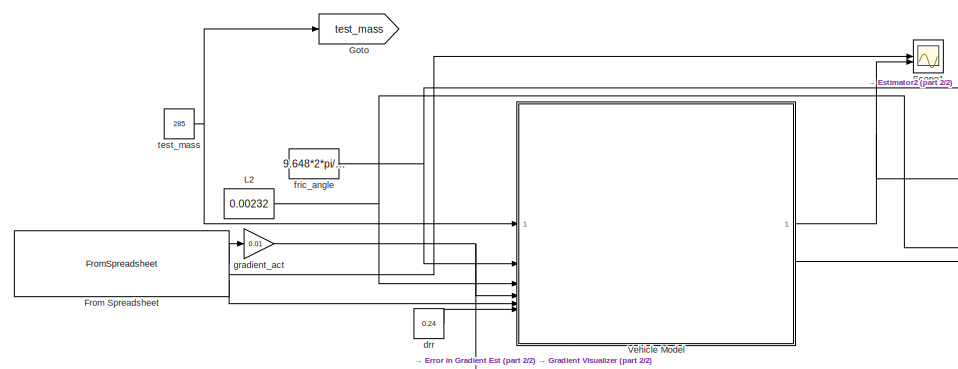
[diagram: root canvas - part 1/2, left side, full height]
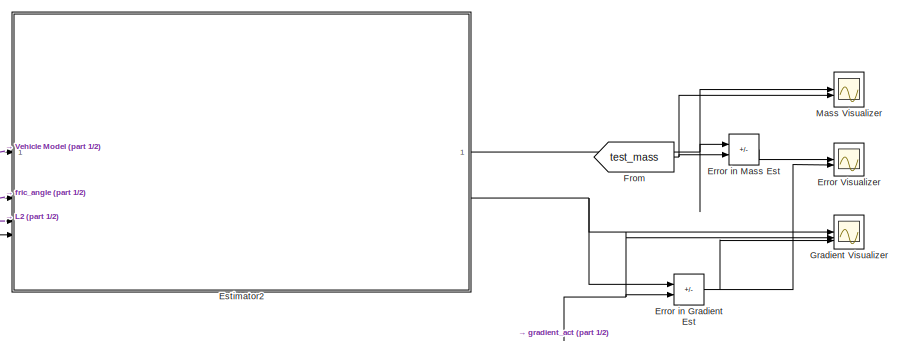
[diagram: root canvas - part 2/2, right side, full height]
MODEL slx_0ac72a007398
KIND model
CONFIG AbsTol = auto
CONFIG EnableMultiTasking = off
CONFIG FixedStep = 0.001
CONFIG MaxStep = auto
CONFIG MinStep = auto
CONFIG RelTol = 1e-3
CONFIG SampleTimeConstraint = Unconstrained
CONFIG SolverName = ode4
CONFIG StartTime = 0.0
CONFIG StopTime = 300
BLOCK [Scope] Error Visualizer
  Floating = off
  NumInputPorts = 2
  ScopeSpecificationString = Simulink.scopes.TimeScopeBlockCfg('CurrentConfiguration', extmgr.ConfigurationSet(extmgr.Configuration('Core','General UI',true),extmgr.Configuration('Core','Source UI',true),extmgr.Configuration('Sources','WiredSimulink',true,'DataLoggingVariableName','ScopeData1'),extmgr.Configuration('Visuals','Time Domain',true,'SerializedDisplays',{struct('MinYLimReal','-71715938.24475','MaxYLimReal','2352497...<+2314ch>
BLOCK [Sum] Error in Gradient Est
  IconShape = rectangular
  Inputs = +-
BLOCK [Sum] Error in Mass Est
  IconShape = rectangular
  Inputs = +-
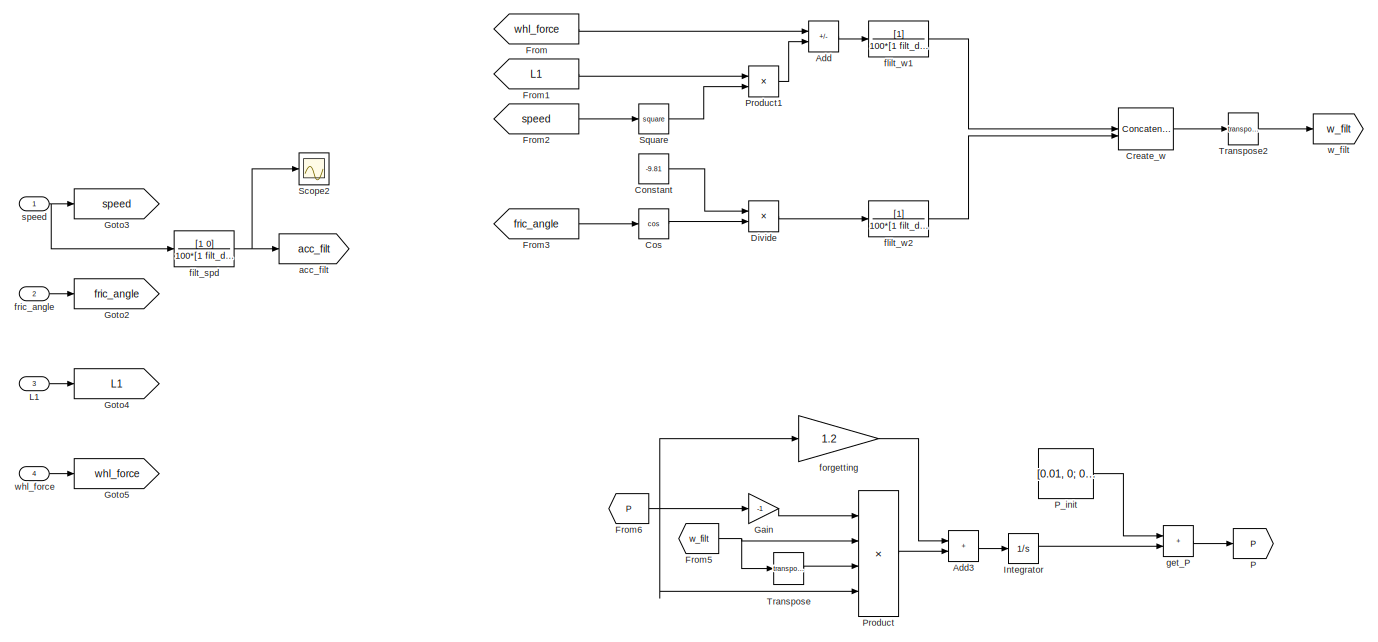
[diagram: Estimator2 - part 1/2, left side, full height]
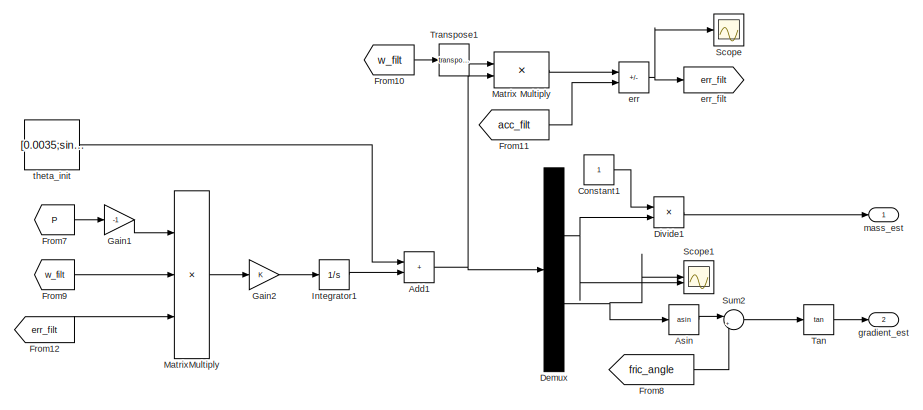
[diagram: Estimator2 - part 2/2, middle right region]
BLOCK [SubSystem] Estimator2
BLOCK [Sum] Estimator2/Add
  IconShape = rectangular
  Inputs = +-
BLOCK [Sum] Estimator2/Add1
  IconShape = rectangular
BLOCK [Sum] Estimator2/Add3
  IconShape = rectangular
BLOCK [Trigonometry] Estimator2/Asin
  Operator = asin
BLOCK [Constant] Estimator2/Constant
  Value = -9.81
BLOCK [Constant] Estimator2/Constant1
BLOCK [Trigonometry] Estimator2/Cos
  Operator = cos
BLOCK [Concatenate] Estimator2/Create_w
  ConcatenateDimension = 2
  Mode = Multidimensional array
BLOCK [Demux] Estimator2/Demux
  Outputs = 2
BLOCK [Product] Estimator2/Divide
  Inputs = */
BLOCK [Product] Estimator2/Divide1
  Inputs = */
BLOCK [From] Estimator2/From
  GotoTag = whl_force
BLOCK [From] Estimator2/From1
  GotoTag = L1
BLOCK [From] Estimator2/From10
  GotoTag = w_filt
BLOCK [From] Estimator2/From11
  GotoTag = acc_filt
BLOCK [From] Estimator2/From12
  GotoTag = err_filt
BLOCK [From] Estimator2/From2
  GotoTag = speed
BLOCK [From] Estimator2/From3
  GotoTag = fric_angle
BLOCK [From] Estimator2/From5
  GotoTag = w_filt
BLOCK [From] Estimator2/From6
  GotoTag = P
BLOCK [From] Estimator2/From7
  GotoTag = P
BLOCK [From] Estimator2/From8
  GotoTag = fric_angle
BLOCK [From] Estimator2/From9
  GotoTag = w_filt
BLOCK [Gain] Estimator2/Gain
  Gain = -1
BLOCK [Gain] Estimator2/Gain1
  Gain = -1
BLOCK [Gain] Estimator2/Gain2
BLOCK [Goto] Estimator2/Goto2
  GotoTag = fric_angle
BLOCK [Goto] Estimator2/Goto3
  GotoTag = speed
BLOCK [Goto] Estimator2/Goto4
  GotoTag = L1
BLOCK [Goto] Estimator2/Goto5
  GotoTag = whl_force
BLOCK [Integrator] Estimator2/Integrator
BLOCK [Integrator] Estimator2/Integrator1
BLOCK [Inport] Estimator2/L1
  Port = 3
BLOCK [Product] Estimator2/Matrix Multiply
  Multiplication = Matrix(*)
BLOCK [Product] Estimator2/MatrixMultiply
  Inputs = 3
  Multiplication = Matrix(*)
BLOCK [Goto] Estimator2/P
  GotoTag = P
BLOCK [Constant] Estimator2/P_init
  Value = [0.01, 0; 0, 0.01]
BLOCK [Product] Estimator2/Product
  Inputs = 4
  Multiplication = Matrix(*)
BLOCK [Product] Estimator2/Product1
BLOCK [Scope] Estimator2/Scope
  Floating = off
  NumInputPorts = 1
  ScopeSpecificationString = Simulink.scopes.TimeScopeBlockCfg('CurrentConfiguration', extmgr.ConfigurationSet(extmgr.Configuration('Core','General UI',true),extmgr.Configuration('Core','Source UI',true),extmgr.Configuration('Sources','WiredSimulink',true,'DataLoggingVariableName','ScopeData1'),extmgr.Configuration('Visuals','Time Domain',true,'SerializedDisplays',{struct('MinYLimReal','-0.01039','MaxYLimReal','0.01875','YLab...<+1484ch>
BLOCK [Scope] Estimator2/Scope1
  Floating = off
  NumInputPorts = 2
  ScopeSpecificationString = Simulink.scopes.TimeScopeBlockCfg('CurrentConfiguration', extmgr.ConfigurationSet(extmgr.Configuration('Core','General UI',true),extmgr.Configuration('Core','Source UI',true),extmgr.Configuration('Sources','WiredSimulink',true,'DataLoggingVariableName','ScopeData2'),extmgr.Configuration('Visuals','Time Domain',true,'SerializedDisplays',{struct('MinYLimReal','-3.87057','MaxYLimReal','3.873','YLabel...<+1528ch>
BLOCK [Scope] Estimator2/Scope2
  Floating = off
  NumInputPorts = 1
  ScopeSpecificationString = Simulink.scopes.TimeScopeBlockCfg('CurrentConfiguration', extmgr.ConfigurationSet(extmgr.Configuration('Core','General UI',true),extmgr.Configuration('Core','Source UI',true),extmgr.Configuration('Sources','WiredSimulink',true,'DataLoggingVariableName','ScopeData3'),extmgr.Configuration('Visuals','Time Domain',true,'SerializedDisplays',{struct('MinYLimReal','-0.13868','MaxYLimReal','1.24813','YLab...<+1456ch>
BLOCK [Math] Estimator2/Square
  Operator = square
BLOCK [Sum] Estimator2/Sum2
  Inputs = |+-
BLOCK [Trigonometry] Estimator2/Tan
  Operator = tan
BLOCK [Math] Estimator2/Transpose
  Operator = transpose
BLOCK [Math] Estimator2/Transpose1
  Operator = transpose
BLOCK [Math] Estimator2/Transpose2
  Operator = transpose
BLOCK [Goto] Estimator2/acc_filt
  GotoTag = acc_filt
BLOCK [Sum] Estimator2/err
  IconShape = rectangular
  Inputs = +-
BLOCK [Goto] Estimator2/err_filt
  GotoTag = err_filt
BLOCK [TransferFcn] Estimator2/filt_spd
  Denominator = 100*[1 filt_damp]
  Numerator = [1 0]
BLOCK [TransferFcn] Estimator2/flilt_w1
  Denominator = 100*[1 filt_damp]
BLOCK [TransferFcn] Estimator2/flilt_w2
  Denominator = 100*[1 filt_damp]
BLOCK [Gain] Estimator2/forgetting
  Gain = 1.2
  Multiplication = Matrix(K*u)
BLOCK [Inport] Estimator2/fric_angle
  Port = 2
BLOCK [Sum] Estimator2/get_P
  IconShape = rectangular
BLOCK [Outport] Estimator2/gradient_est
  Port = 2
BLOCK [Outport] Estimator2/mass_est
BLOCK [Inport] Estimator2/speed
BLOCK [Constant] Estimator2/theta_init
  Value = [0.0035;sin(9.648*2*pi/360)]
  VectorParams1D = off
BLOCK [Goto] Estimator2/w_filt
  GotoTag = w_filt
BLOCK [Inport] Estimator2/whl_force
  Port = 4
BLOCK [From] From
  GotoTag = test_mass
BLOCK [FromSpreadsheet] From Spreadsheet
  FileName = grade_def.xlsx
BLOCK [Goto] Goto
  GotoTag = test_mass
BLOCK [Scope] Gradient Visualizer
  Floating = off
  NumInputPorts = 3
  ScopeSpecificationString = Simulink.scopes.TimeScopeBlockCfg('CurrentConfiguration', extmgr.ConfigurationSet(extmgr.Configuration('Core','General UI',true),extmgr.Configuration('Core','Source UI',true),extmgr.Configuration('Sources','WiredSimulink',true,'DataLoggingVariableName','ScopeData1'),extmgr.Configuration('Visuals','Time Domain',true,'SerializedDisplays',{struct('MinYLimReal','-0.54779','MaxYLimReal','0.33864','YLab...<+1672ch>
BLOCK [Constant] L2
  Value = 0.00232
BLOCK [Scope] Mass Visualizer
  Floating = off
  NumInputPorts = 2
  ScopeSpecificationString = Simulink.scopes.TimeScopeBlockCfg('CurrentConfiguration', extmgr.ConfigurationSet(extmgr.Configuration('Core','General UI',true),extmgr.Configuration('Core','Source UI',true),extmgr.Configuration('Sources','WiredSimulink',true,'DataLoggingVariableName','ScopeData5'),extmgr.Configuration('Visuals','Time Domain',true,'SerializedDisplays',{struct('MinYLimReal','-1400.70802','MaxYLimReal','587.23104',...<+1705ch>
BLOCK [Scope] Scope1
  Floating = off
  NumInputPorts = 2
  ScopeSpecificationString = Simulink.scopes.TimeScopeBlockCfg('CurrentConfiguration', extmgr.ConfigurationSet(extmgr.Configuration('Core','General UI',true),extmgr.Configuration('Core','Source UI',true),extmgr.Configuration('Sources','WiredSimulink',true,'DataLoggingVariableName','ScopeData3'),extmgr.Configuration('Visuals','Time Domain',true,'SerializedDisplays',{struct('MinYLimReal','-15.64673','MaxYLimReal','140.80369','Y...<+1523ch>
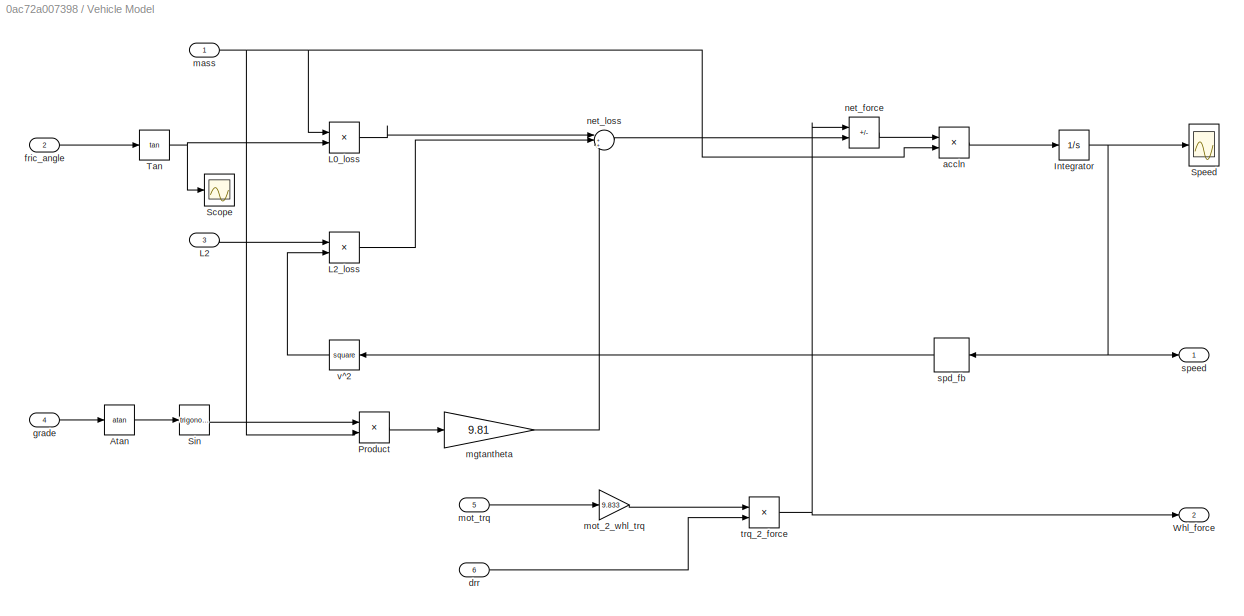
BLOCK [SubSystem] Vehicle Model
BLOCK [Trigonometry] Vehicle Model/Atan
  Operator = atan
BLOCK [Integrator] Vehicle Model/Integrator
BLOCK [Product] Vehicle Model/L0_loss
BLOCK [Inport] Vehicle Model/L2
  Port = 3
BLOCK [Product] Vehicle Model/L2_loss
BLOCK [Product] Vehicle Model/Product
BLOCK [Scope] Vehicle Model/Scope
  Floating = off
  NumInputPorts = 1
  ScopeSpecificationString = Simulink.scopes.TimeScopeBlockCfg('CurrentConfiguration', extmgr.ConfigurationSet(extmgr.Configuration('Core','General UI',true),extmgr.Configuration('Core','Source UI',true),extmgr.Configuration('Sources','WiredSimulink',true,'DataLoggingVariableName','ScopeData4'),extmgr.Configuration('Visuals','Time Domain',true,'SerializedDisplays',{struct('MinYLimReal','0.07','MaxYLimReal','0.27','YLabelReal'...<+1371ch>
BLOCK [Trigonometry] Vehicle Model/Sin
BLOCK [Scope] Vehicle Model/Speed
  Floating = off
  NumInputPorts = 1
  ScopeSpecificationString = Simulink.scopes.TimeScopeBlockCfg('CurrentConfiguration', extmgr.ConfigurationSet(extmgr.Configuration('Core','General UI',true),extmgr.Configuration('Core','Source UI',true),extmgr.Configuration('Sources','WiredSimulink',true),extmgr.Configuration('Visuals','Time Domain',true,'SerializedDisplays',{struct('MinYLimReal','-15.62363','MaxYLimReal','140.61256','YLabelReal','','MinYLimMag','0.00000','M...<+1462ch>
BLOCK [Trigonometry] Vehicle Model/Tan
  Operator = tan
BLOCK [Outport] Vehicle Model/Whl_force
  Port = 2
BLOCK [Product] Vehicle Model/accln
  Inputs = */
BLOCK [Inport] Vehicle Model/drr
  Port = 6
BLOCK [Inport] Vehicle Model/fric_angle
  Port = 2
BLOCK [Inport] Vehicle Model/grade
  Port = 4
BLOCK [Inport] Vehicle Model/mass
BLOCK [Gain] Vehicle Model/mgtantheta
  Gain = 9.81
BLOCK [Gain] Vehicle Model/mot_2_whl_trq
  Gain = 9.833
BLOCK [Inport] Vehicle Model/mot_trq
  Port = 5
BLOCK [Sum] Vehicle Model/net_force
  IconShape = rectangular
  Inputs = +-
BLOCK [Sum] Vehicle Model/net_loss
  Inputs = |+++
  NameLocation = top
BLOCK [Delay] Vehicle Model/spd_fb
  DelayLength = 1
  InitialCondition = 0
  InputPortMap = u0
BLOCK [Outport] Vehicle Model/speed
BLOCK [Product] Vehicle Model/trq_2_force
  Inputs = */
BLOCK [Math] Vehicle Model/v^2
  Operator = square
BLOCK [Constant] drr
  Value = 0.24
BLOCK [Constant] fric_angle
  Value = 9.648*2*pi/360
BLOCK [Gain] gradient_act
  Gain = 0.01
BLOCK [Constant] test_mass
  Value = 285
NET Error in Gradient Est:1 -> Error Visualizer:2, Gradient Visualizer:3
LINE Error in Mass Est:1 -> Error Visualizer:1
NET Estimator2/Add1:1 -> Estimator2/Demux:1, Estimator2/Matrix Multiply:2
LINE Estimator2/Add3:1 -> Estimator2/Integrator:1
LINE Estimator2/Add:1 -> Estimator2/flilt_w1:1
LINE Estimator2/Asin:1 -> Estimator2/Sum2:1
LINE Estimator2/Constant1:1 -> Estimator2/Divide1:1
LINE Estimator2/Constant:1 -> Estimator2/Divide:1
LINE Estimator2/Cos:1 -> Estimator2/Divide:2
LINE Estimator2/Create_w:1 -> Estimator2/Transpose2:1
NET Estimator2/Demux:1 -> Estimator2/Divide1:2, Estimator2/Scope1:2
NET Estimator2/Demux:2 -> Estimator2/Asin:1, Estimator2/Scope1:1
LINE Estimator2/Divide1:1 -> Estimator2/mass_est:1
LINE Estimator2/Divide:1 -> Estimator2/flilt_w2:1
LINE Estimator2/From10:1 -> Estimator2/Transpose1:1
LINE Estimator2/From11:1 -> Estimator2/err:2
LINE Estimator2/From12:1 -> Estimator2/MatrixMultiply:3
LINE Estimator2/From1:1 -> Estimator2/Product1:1
LINE Estimator2/From2:1 -> Estimator2/Square:1
LINE Estimator2/From3:1 -> Estimator2/Cos:1
NET Estimator2/From5:1 -> Estimator2/Product:2, Estimator2/Transpose:1
NET Estimator2/From6:1 -> Estimator2/Gain:1, Estimator2/Product:4, Estimator2/forgetting:1
LINE Estimator2/From7:1 -> Estimator2/Gain1:1
LINE Estimator2/From8:1 -> Estimator2/Sum2:2
LINE Estimator2/From9:1 -> Estimator2/MatrixMultiply:2
LINE Estimator2/From:1 -> Estimator2/Add:1
LINE Estimator2/Gain1:1 -> Estimator2/MatrixMultiply:1
LINE Estimator2/Gain2:1 -> Estimator2/Integrator1:1
LINE Estimator2/Gain:1 -> Estimator2/Product:1
LINE Estimator2/Integrator1:1 -> Estimator2/Add1:2
LINE Estimator2/Integrator:1 -> Estimator2/get_P:2
LINE Estimator2/L1:1 -> Estimator2/Goto4:1
LINE Estimator2/Matrix Multiply:1 -> Estimator2/err:1
LINE Estimator2/MatrixMultiply:1 -> Estimator2/Gain2:1
LINE Estimator2/P_init:1 -> Estimator2/get_P:1
LINE Estimator2/Product1:1 -> Estimator2/Add:2
LINE Estimator2/Product:1 -> Estimator2/Add3:2
LINE Estimator2/Square:1 -> Estimator2/Product1:2
LINE Estimator2/Sum2:1 -> Estimator2/Tan:1
LINE Estimator2/Tan:1 -> Estimator2/gradient_est:1
LINE Estimator2/Transpose1:1 -> Estimator2/Matrix Multiply:1
LINE Estimator2/Transpose2:1 -> Estimator2/w_filt:1
LINE Estimator2/Transpose:1 -> Estimator2/Product:3
NET Estimator2/err:1 -> Estimator2/Scope:1, Estimator2/err_filt:1
NET Estimator2/filt_spd:1 -> Estimator2/Scope2:1, Estimator2/acc_filt:1
LINE Estimator2/flilt_w1:1 -> Estimator2/Create_w:1
LINE Estimator2/flilt_w2:1 -> Estimator2/Create_w:2
LINE Estimator2/forgetting:1 -> Estimator2/Add3:1
LINE Estimator2/fric_angle:1 -> Estimator2/Goto2:1
LINE Estimator2/get_P:1 -> Estimator2/P:1
NET Estimator2/speed:1 -> Estimator2/Goto3:1, Estimator2/filt_spd:1
LINE Estimator2/theta_init:1 -> Estimator2/Add1:1
LINE Estimator2/whl_force:1 -> Estimator2/Goto5:1
NET Estimator2:1 -> Error in Mass Est:1, Mass Visualizer:1
NET Estimator2:2 -> Error in Gradient Est:1, Gradient Visualizer:1
LINE From Spreadsheet:1 -> gradient_act:1
LINE From Spreadsheet:2 -> Scope1:1
LINE From Spreadsheet:3 -> Vehicle Model:5
NET From:1 -> Error in Mass Est:2, Mass Visualizer:2
NET L2:1 -> Estimator2:3, Vehicle Model:3
LINE Vehicle Model/Atan:1 -> Vehicle Model/Sin:1
NET Vehicle Model/Integrator:1 -> Vehicle Model/Speed:1, Vehicle Model/spd_fb:1, Vehicle Model/speed:1
LINE Vehicle Model/L0_loss:1 -> Vehicle Model/net_loss:1
LINE Vehicle Model/L2:1 -> Vehicle Model/L2_loss:1
LINE Vehicle Model/L2_loss:1 -> Vehicle Model/net_loss:2
LINE Vehicle Model/Product:1 -> Vehicle Model/mgtantheta:1
LINE Vehicle Model/Sin:1 -> Vehicle Model/Product:1
NET Vehicle Model/Tan:1 -> Vehicle Model/L0_loss:2, Vehicle Model/Scope:1
LINE Vehicle Model/accln:1 -> Vehicle Model/Integrator:1
LINE Vehicle Model/drr:1 -> Vehicle Model/trq_2_force:2
LINE Vehicle Model/fric_angle:1 -> Vehicle Model/Tan:1
LINE Vehicle Model/grade:1 -> Vehicle Model/Atan:1
NET Vehicle Model/mass:1 -> Vehicle Model/L0_loss:1, Vehicle Model/Product:2, Vehicle Model/accln:2
LINE Vehicle Model/mgtantheta:1 -> Vehicle Model/net_loss:3
LINE Vehicle Model/mot_2_whl_trq:1 -> Vehicle Model/trq_2_force:1
LINE Vehicle Model/mot_trq:1 -> Vehicle Model/mot_2_whl_trq:1
LINE Vehicle Model/net_force:1 -> Vehicle Model/accln:1
LINE Vehicle Model/net_loss:1 -> Vehicle Model/net_force:2
LINE Vehicle Model/spd_fb:1 -> Vehicle Model/v^2:1
NET Vehicle Model/trq_2_force:1 -> Vehicle Model/Whl_force:1, Vehicle Model/net_force:1
LINE Vehicle Model/v^2:1 -> Vehicle Model/L2_loss:2
NET Vehicle Model:1 -> Estimator2:1, Scope1:2
LINE Vehicle Model:2 -> Estimator2:4
LINE drr:1 -> Vehicle Model:6
NET fric_angle:1 -> Estimator2:2, Vehicle Model:2
NET gradient_act:1 -> Error in Gradient Est:2, Gradient Visualizer:2, Vehicle Model:4
NET test_mass:1 -> Goto:1, Vehicle Model:1
note: NET lines group one-source signal fan-out (src -> all destinations, sorted); 1:1 wires keep LINE
